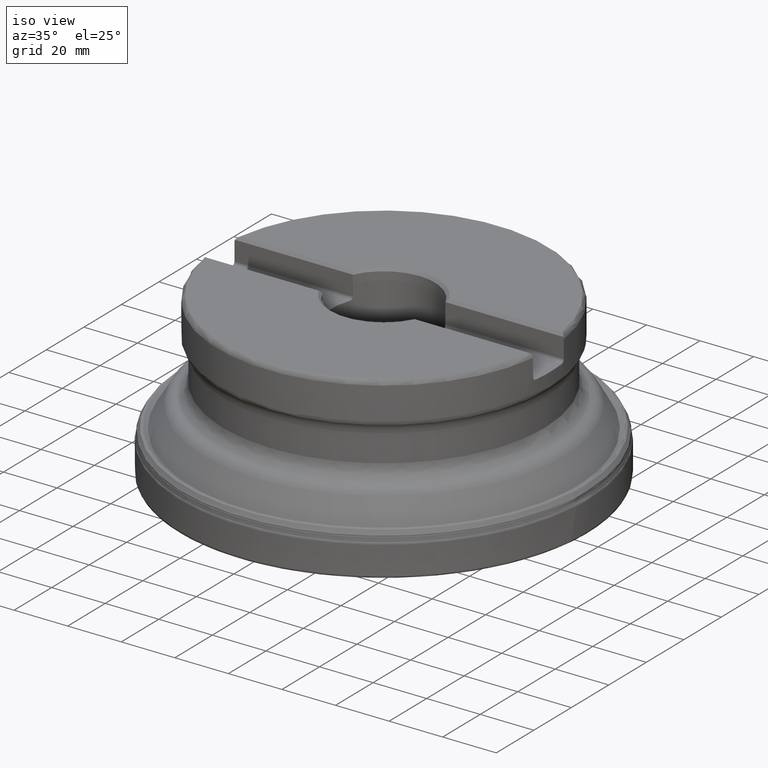
[diagram: clean part render]
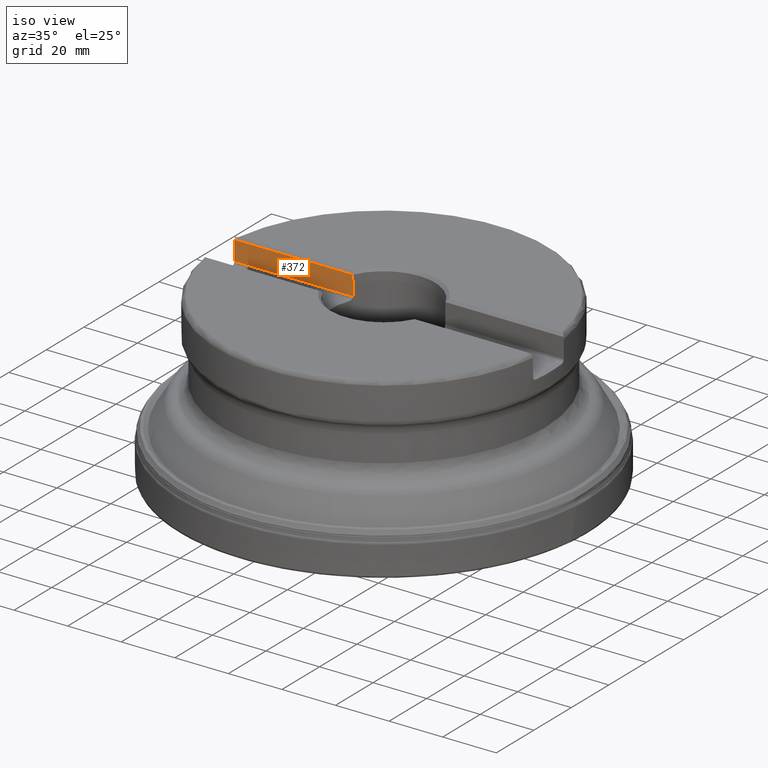
[diagram: same view with one face highlighted and labeled with its STEP entity id]
A machine part, iso view. The second image highlights one B-rep face of the part: STEP entity #372.
In plain terms, the highlighted planar face has unit normal (-0, -1, 0).
Its self-contained STEP definition (entity closure, byte-faithful):
#173=PLANE('',#1227);
#197=LINE('',#1992,#224);
#206=LINE('',#2102,#233);
#207=LINE('',#2103,#234);
#208=LINE('',#2105,#235);
#224=VECTOR('',#1324,1.);
#233=VECTOR('',#1399,1.);
#234=VECTOR('',#1400,1.);
#235=VECTOR('',#1401,1.);
#372=ADVANCED_FACE('',(#454),#173,.T.);
#454=FACE_OUTER_BOUND('',#496,.T.);
#496=EDGE_LOOP('',(#659,#660,#661,#662,#663,#664,#665));
#659=ORIENTED_EDGE('',*,*,#987,.F.);
#660=ORIENTED_EDGE('',*,*,#988,.T.);
#661=ORIENTED_EDGE('',*,*,#989,.T.);
#662=ORIENTED_EDGE('',*,*,#942,.F.);
#663=ORIENTED_EDGE('',*,*,#955,.F.);
#664=ORIENTED_EDGE('',*,*,#990,.T.);
#665=ORIENTED_EDGE('',*,*,#991,.F.);
#845=VERTEX_POINT('',#1900);
#846=VERTEX_POINT('',#1901);
#857=VERTEX_POINT('',#1991);
#885=VERTEX_POINT('',#2095);
#886=VERTEX_POINT('',#2096);
#887=VERTEX_POINT('',#2101);
#888=VERTEX_POINT('',#2104);
#942=EDGE_CURVE('',#845,#846,#1143,.T.);
#955=EDGE_CURVE('',#857,#845,#197,.T.);
#987=EDGE_CURVE('',#885,#886,#1153,.T.);
#988=EDGE_CURVE('',#885,#887,#1154,.T.);
#989=EDGE_CURVE('',#887,#846,#206,.T.);
#990=EDGE_CURVE('',#857,#888,#207,.T.);
#991=EDGE_CURVE('',#886,#888,#208,.T.);
#1143=B_SPLINE_CURVE_WITH_KNOTS('',3,(#1893,#1894,#1895,#1896,#1897,#1898,
#1899),.UNSPECIFIED.,.F.,.F.,(4,3,4),(0.,0.770280680361321,1.),
 .UNSPECIFIED.);
#1153=B_SPLINE_CURVE_WITH_KNOTS('',3,(#2088,#2089,#2090,#2091,#2092,#2093,
#2094),.UNSPECIFIED.,.F.,.F.,(4,3,4),(0.,0.356753990336666,1.),
 .UNSPECIFIED.);
#1154=B_SPLINE_CURVE_WITH_KNOTS('',3,(#2097,#2098,#2099,#2100),
 .UNSPECIFIED.,.F.,.F.,(4,4),(0.,1.),.UNSPECIFIED.);
#1227=AXIS2_PLACEMENT_3D('',#2106,#1402,#1403);
#1324=DIRECTION('',(0.,1.17145536458252E-15,1.));
#1399=DIRECTION('',(-1.,6.39711790766089E-31,-7.49393809079628E-46));
#1400=DIRECTION('',(1.,-1.37230767120917E-30,-1.17145536458252E-15));
#1401=DIRECTION('',(-1.17145536458252E-15,-1.17145536458252E-15,-1.));
#1402=DIRECTION('',(-6.39711790766089E-31,-1.,6.25372423561493E-16));
#1403=DIRECTION('',(1.16573417585641E-15,6.26235174827627E-16,1.));
#1893=CARTESIAN_POINT('',(-61.4633256503421,8.14000000000007,58.525));
#1894=CARTESIAN_POINT('',(-61.4633256503421,8.14000000000007,58.7352074346321));
#1895=CARTESIAN_POINT('',(-61.4290337271452,8.14000000000007,58.9480110913326));
#1896=CARTESIAN_POINT('',(-61.3630787631787,8.14000000000007,59.1476034466542));
#1897=CARTESIAN_POINT('',(-61.343202067389,8.14000000000007,59.2077541357017));
#1898=CARTESIAN_POINT('',(-61.320420397344,8.14000000000007,59.2670207565601));
#1899=CARTESIAN_POINT('',(-61.2948940235524,8.14000000000007,59.3249999999965));
#1900=CARTESIAN_POINT('',(-61.4633256503421,8.14000000000007,58.525));
#1901=CARTESIAN_POINT('',(-61.2948940235524,8.14000000000007,59.3249999999965));
#1991=CARTESIAN_POINT('',(-61.4633256503421,8.14000000000006,51.9950000000001));
#1992=CARTESIAN_POINT('',(-61.4633256503421,8.14000000000003,-5.09053152779058E-15));
#2088=CARTESIAN_POINT('',(-17.3093958371532,8.14000000000007,59.2981099373595));
#2089=CARTESIAN_POINT('',(-17.2991650061558,8.14000000000007,58.9445535254094));
#2090=CARTESIAN_POINT('',(-17.2889325338785,8.14000000000007,58.5909971609489));
#2091=CARTESIAN_POINT('',(-17.2786984115604,8.14000000000007,58.2374408442548));
#2092=CARTESIAN_POINT('',(-17.2602457564619,8.14000000000007,57.5999604070386));
#2093=CARTESIAN_POINT('',(-17.241787737125,8.14000000000007,56.9624801250739));
#2094=CARTESIAN_POINT('',(-17.2233243016555,8.14000000000007,56.325));
#2095=CARTESIAN_POINT('',(-17.3093958371532,8.14000000000007,59.2981099373595));
#2096=CARTESIAN_POINT('',(-17.2233243016555,8.14000000000007,56.325));
#2097=CARTESIAN_POINT('',(-17.3093958371532,8.14000000000007,59.2981099373595));
#2098=CARTESIAN_POINT('',(-17.3193000014706,8.14000000000007,59.3070725268889));
#2099=CARTESIAN_POINT('',(-17.3292034727385,8.14000000000007,59.3160358823359));
#2100=CARTESIAN_POINT('',(-17.3391062539843,8.14000000000007,59.325));
#2101=CARTESIAN_POINT('',(-17.3391062539844,8.14000000000007,59.325));
#2102=CARTESIAN_POINT('',(67.0000000000001,8.14000000000007,59.325));
#2103=CARTESIAN_POINT('',(67.0000000000001,8.14000000000006,51.9949999999999));
#2104=CARTESIAN_POINT('',(-17.2233243016555,8.14000000000006,51.995));
#2105=CARTESIAN_POINT('',(-17.2233243016556,8.14000000000003,1.50858241213284E-14));
#2106=CARTESIAN_POINT('',(67.0000000000001,8.14000000000006,50.7949999999999));